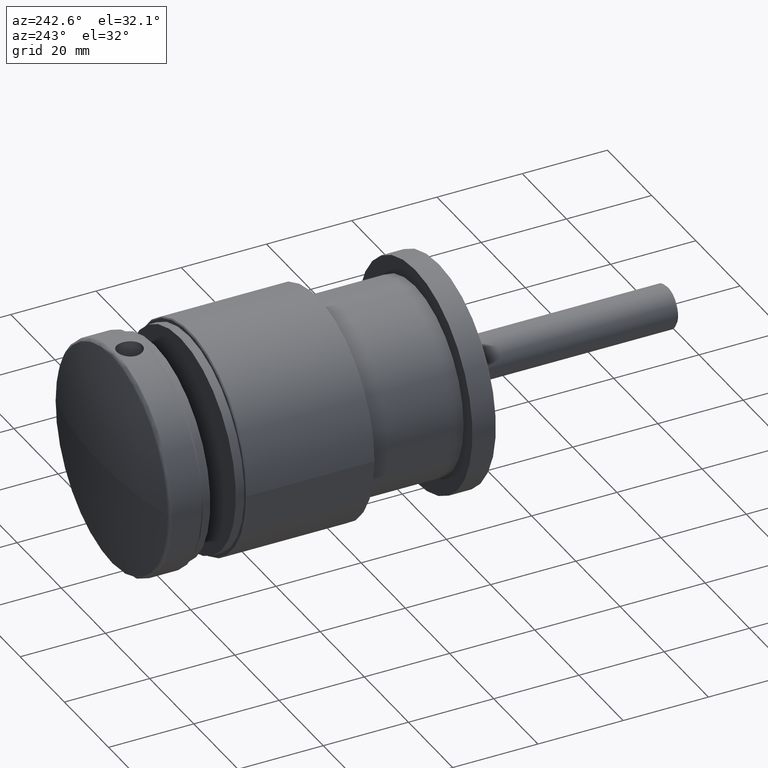
[diagram: clean part render]
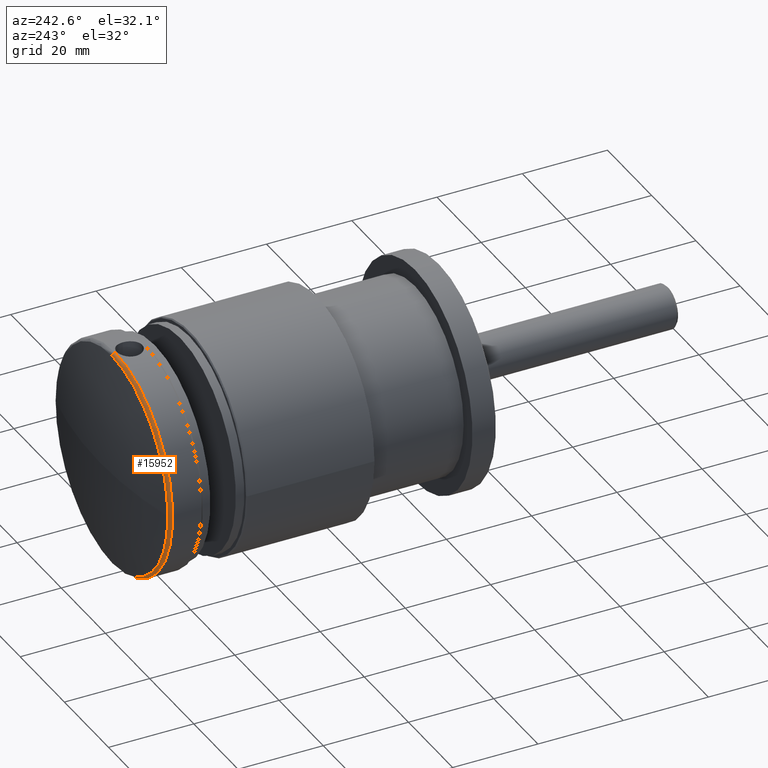
[diagram: same view with one face highlighted and labeled with its STEP entity id]
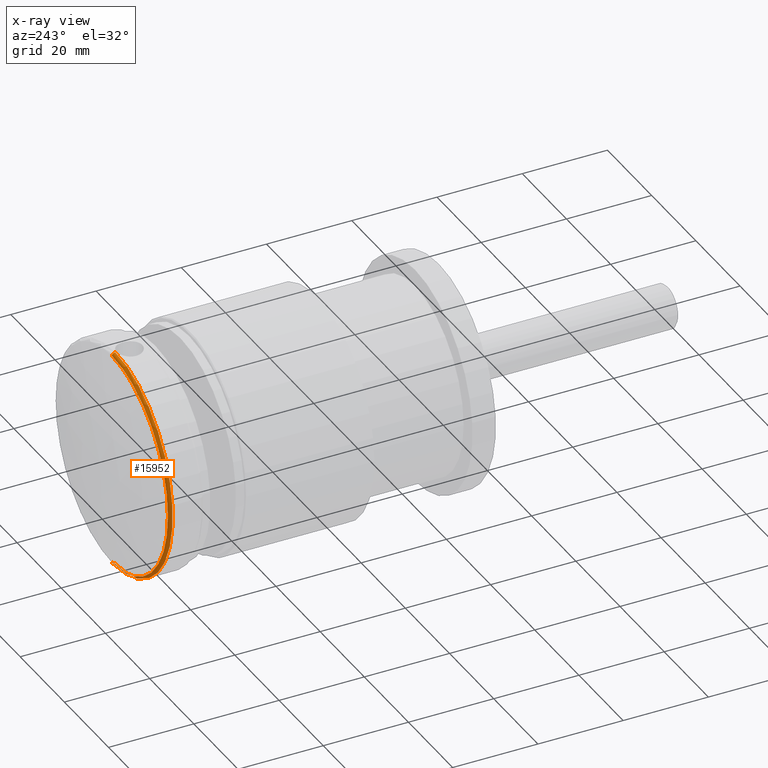
[diagram: x-ray of the same camera — body ghosted, the highlighted face saturated]
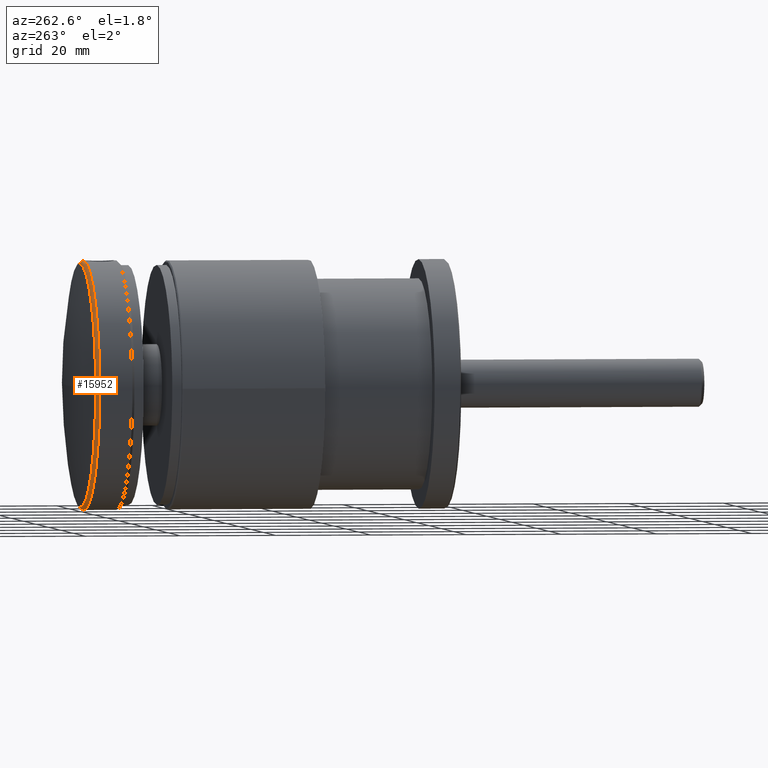
[diagram: same view with one face highlighted and labeled with its STEP entity id]
A machine part, auxiliary view. The second image highlights one B-rep face of the part: STEP entity #15952.
The next image is the same camera in x-ray: the body ghosted, the highlighted face saturated — about 0% of this face is hidden behind the body in this view.
A second angle (auxiliary view) of the same face is appended — the face is thin or edge-on in the first view.
In plain terms, the highlighted toroidal blend (fillet) surface has major radius 25.2 mm and minor (blend) radius 0.8 mm.
Its self-contained STEP definition (entity closure, byte-faithful):
#361 = VERTEX_POINT ( 'NONE', #20662 ) ;
#1187 = CIRCLE ( 'NONE', #9947, 0.8000000000000090372 ) ;
#1406 = CIRCLE ( 'NONE', #3510, 26.00000000000001066 ) ;
#1532 = TOROIDAL_SURFACE ( 'NONE', #3261, 25.19999999999999929, 0.8000000000000105915 ) ;
#1874 = CIRCLE ( 'NONE', #12335, 25.37783004998530245 ) ;
#2409 = ORIENTED_EDGE ( 'NONE', *, *, #28726, .T. ) ;
#3261 = AXIS2_PLACEMENT_3D ( 'NONE', #6415, #17564, #25419 ) ;
#3510 = AXIS2_PLACEMENT_3D ( 'NONE', #7520, #23465, #15122 ) ;
#4092 = ORIENTED_EDGE ( 'NONE', *, *, #13305, .F. ) ;
#4158 = CIRCLE ( 'NONE', #23354, 0.8000000000000090372 ) ;
#4647 = EDGE_CURVE ( 'NONE', #10858, #13059, #28050, .T. ) ;
#6415 = CARTESIAN_POINT ( 'NONE',  ( 0.000000000000000000, 7.363696180431180238, 0.000000000000000000 ) ) ;
#7483 = CARTESIAN_POINT ( 'NONE',  ( 0.000000000000000000, 8.143681099081700125, 0.000000000000000000 ) ) ;
#7520 = CARTESIAN_POINT ( 'NONE',  ( 0.000000000000000000, 7.363696180431180238, 0.000000000000000000 ) ) ;
#9220 = ORIENTED_EDGE ( 'NONE', *, *, #4647, .T. ) ;
#9947 = AXIS2_PLACEMENT_3D ( 'NONE', #11859, #22020, #14696 ) ;
#10858 = VERTEX_POINT ( 'NONE', #25758 ) ;
#11859 = CARTESIAN_POINT ( 'NONE',  ( 0.000000000000000000, 7.363696180431180238, -25.19999999999999929 ) ) ;
#11980 = CARTESIAN_POINT ( 'NONE',  ( 0.000000000000000000, 8.143681099081700125, 0.000000000000000000 ) ) ;
#12076 = AXIS2_PLACEMENT_3D ( 'NONE', #11980, #22367, #30348 ) ;
#12335 = AXIS2_PLACEMENT_3D ( 'NONE', #7483, #17953, #18290 ) ;
#12432 = ORIENTED_EDGE ( 'NONE', *, *, #30120, .T. ) ;
#12435 = DIRECTION ( 'NONE',  ( -1.224646799147356905E-16, 0.000000000000000000, -1.000000000000000000 ) ) ;
#13059 = VERTEX_POINT ( 'NONE', #30018 ) ;
#13305 = EDGE_CURVE ( 'NONE', #361, #26124, #4158, .T. ) ;
#14696 = DIRECTION ( 'NONE',  ( 0.000000000000000000, 0.000000000000000000, 1.000000000000000000 ) ) ;
#15122 = DIRECTION ( 'NONE',  ( 0.000000000000000000, 0.000000000000000000, -1.000000000000000000 ) ) ;
#15952 = ADVANCED_FACE ( 'NONE', ( #19864 ), #1532, .T. ) ;
#16485 = ORIENTED_EDGE ( 'NONE', *, *, #19916, .F. ) ;
#17564 = DIRECTION ( 'NONE',  ( -0.000000000000000000, -1.000000000000000000, -0.000000000000000000 ) ) ;
#17953 = DIRECTION ( 'NONE',  ( -0.000000000000000000, -1.000000000000000000, -0.000000000000000000 ) ) ;
#18195 = CARTESIAN_POINT ( 'NONE',  ( 0.000000000000000000, 7.363696180431180238, -26.00000000000001066 ) ) ;
#18290 = DIRECTION ( 'NONE',  ( 0.000000000000000000, 0.000000000000000000, -1.000000000000000000 ) ) ;
#19648 = EDGE_LOOP ( 'NONE', ( #4092, #12432, #9220, #2409, #16485 ) ) ;
#19864 = FACE_OUTER_BOUND ( 'NONE', #19648, .T. ) ;
#19916 = EDGE_CURVE ( 'NONE', #26124, #27999, #1406, .T. ) ;
#20662 = CARTESIAN_POINT ( 'NONE',  ( 3.145984755892560838E-15, 8.143681099081700125, 25.37783004998530600 ) ) ;
#22020 = DIRECTION ( 'NONE',  ( -1.000000000000000000, 0.000000000000000000, 0.000000000000000000 ) ) ;
#22367 = DIRECTION ( 'NONE',  ( -0.000000000000000000, -1.000000000000000000, -0.000000000000000000 ) ) ;
#23354 = AXIS2_PLACEMENT_3D ( 'NONE', #28517, #33327, #12435 ) ;
#23465 = DIRECTION ( 'NONE',  ( -0.000000000000000000, -1.000000000000000000, -0.000000000000000000 ) ) ;
#25419 = DIRECTION ( 'NONE',  ( 0.000000000000000000, 0.000000000000000000, -1.000000000000000000 ) ) ;
#25758 = CARTESIAN_POINT ( 'NONE',  ( -25.37783004998530245, 8.143681099081700125, 0.000000000000000000 ) ) ;
#26124 = VERTEX_POINT ( 'NONE', #31277 ) ;
#27999 = VERTEX_POINT ( 'NONE', #18195 ) ;
#28050 = CIRCLE ( 'NONE', #12076, 25.37783004998530245 ) ;
#28517 = CARTESIAN_POINT ( 'NONE',  ( 3.086109933851330151E-15, 7.363696180431180238, 25.19999999999999929 ) ) ;
#28726 = EDGE_CURVE ( 'NONE', #13059, #27999, #1187, .T. ) ;
#30018 = CARTESIAN_POINT ( 'NONE',  ( 0.000000000000000000, 8.143681099081700125, -25.37783004998530600 ) ) ;
#30120 = EDGE_CURVE ( 'NONE', #361, #10858, #1874, .T. ) ;
#30348 = DIRECTION ( 'NONE',  ( 0.000000000000000000, 0.000000000000000000, -1.000000000000000000 ) ) ;
#31277 = CARTESIAN_POINT ( 'NONE',  ( 3.184081677783119374E-15, 7.363696180431180238, 26.00000000000001066 ) ) ;
#33327 = DIRECTION ( 'NONE',  ( 1.000000000000000000, 0.000000000000000000, -1.224646799147353207E-16 ) ) ;